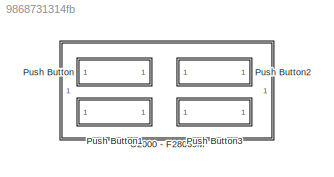
MODEL slx_9868731314fb
KIND model
CONFIG AbsTol = auto
CONFIG FixedStep = auto
CONFIG MaxStep = auto
CONFIG MinStep = auto
CONFIG RelTol = 1e-3
CONFIG SampleTimeConstraint = Unconstrained
CONFIG Solver = VariableStepAuto
CONFIG SolverMode = Auto
CONFIG SolverName = VariableStepAuto
CONFIG StartTime = 0.0
CONFIG StopTime = inf
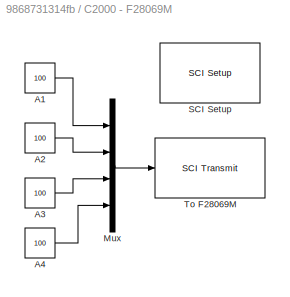
BLOCK [SubSystem] C2000 - F28069M
  Ports = []
  RequestExecContextInheritance = off
  Variant = off
BLOCK [Constant] C2000 - F28069M/A1
  OutDataTypeStr = uint8
  Value = 100
BLOCK [Constant] C2000 - F28069M/A2
  OutDataTypeStr = uint8
  Value = 100
BLOCK [Constant] C2000 - F28069M/A3
  OutDataTypeStr = uint8
  Value = 100
BLOCK [Constant] C2000 - F28069M/A4
  OutDataTypeStr = uint8
  Value = 100
BLOCK [Mux] C2000 - F28069M/Mux
  DisplayOption = bar
  Ports = [4, 1]
BLOCK [Reference] C2000 - F28069M/SCI Setup  REF=c2000scilib/SCI Setup
  Ports = []
  Priority = -99
  SourceBlock = c2000scilib/SCI Setup
  SourceType = c2000 Host SCI Setup
BLOCK [Reference] C2000 - F28069M/To F28069M  REF=c2000scilib/SCI Transmit
  Ports = [1]
  SourceBlock = c2000scilib/SCI Transmit
  SourceType = c2000 Host SCI Transmit
BLOCK [SubSystem] Push Button
  DialogController = hmiCreateDDGDialog
  IsWebBlock = on
  Ports = []
  RequestExecContextInheritance = off
  Variant = off
BLOCK [SubSystem] Push Button1
  DialogController = hmiCreateDDGDialog
  IsWebBlock = on
  Ports = []
  RequestExecContextInheritance = off
  Variant = off
BLOCK [SubSystem] Push Button2
  DialogController = hmiCreateDDGDialog
  IsWebBlock = on
  Ports = []
  RequestExecContextInheritance = off
  Variant = off
BLOCK [SubSystem] Push Button3
  DialogController = hmiCreateDDGDialog
  IsWebBlock = on
  Ports = []
  RequestExecContextInheritance = off
  Variant = off
LINE C2000 - F28069M/A1:1 -> C2000 - F28069M/Mux:1
LINE C2000 - F28069M/A2:1 -> C2000 - F28069M/Mux:2
LINE C2000 - F28069M/A3:1 -> C2000 - F28069M/Mux:3
LINE C2000 - F28069M/A4:1 -> C2000 - F28069M/Mux:4
LINE C2000 - F28069M/Mux:1 -> C2000 - F28069M/To F28069M:1
